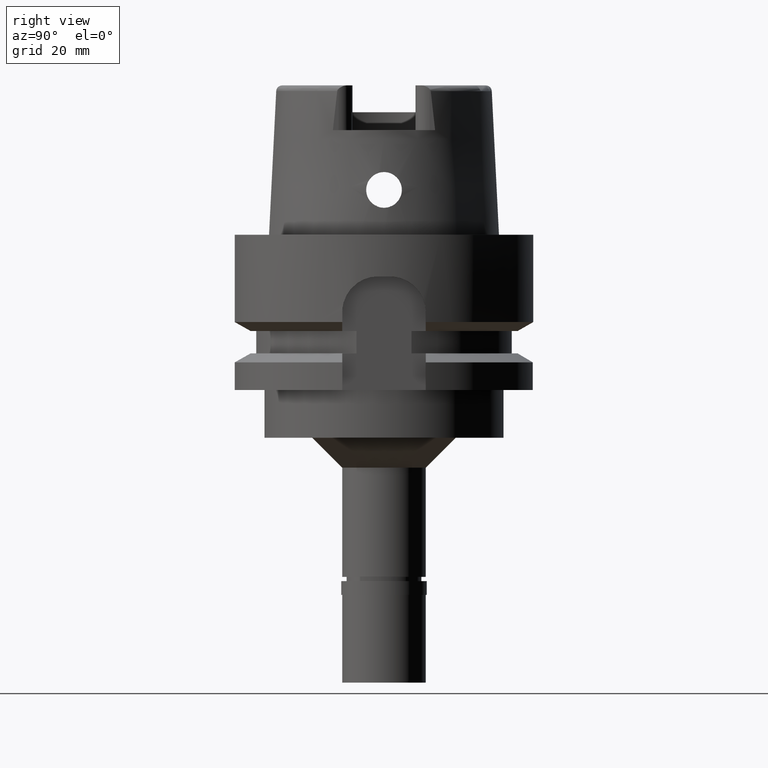
[diagram: clean part render]
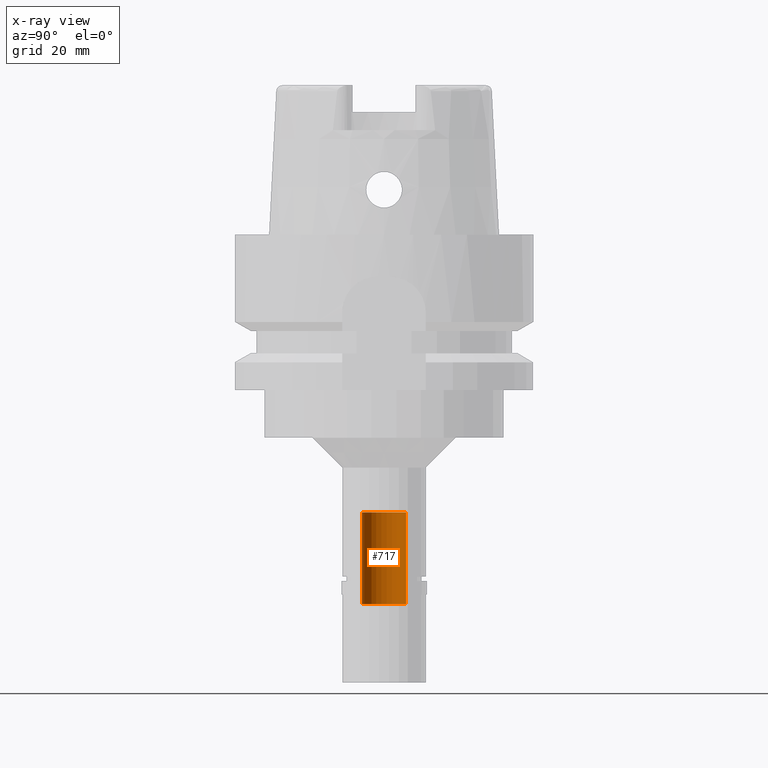
[diagram: x-ray — body ghosted, one internal face saturated and labeled with its STEP entity id]
A machine part, right view, then the same camera in x-ray: the body is ghosted and one INTERNAL B-rep face — a face not visible from any outside direction — is saturated and labeled: STEP entity #717.
In plain terms, the highlighted cylindrical surface (edge-blend (fillet) strip) has radius 3.7 mm, axis along (0, 0, 1).
Its self-contained STEP definition (entity closure, byte-faithful):
#171 = VERTEX_POINT ( 'NONE', #1955 ) ;
#299 = FACE_OUTER_BOUND ( 'NONE', #521, .T. ) ;
#521 = EDGE_LOOP ( 'NONE', ( #2609, #4174, #2618, #2857 ) ) ;
#717 = ADVANCED_FACE ( 'NONE', ( #299 ), #3285, .F. ) ;
#804 = DIRECTION ( 'NONE',  ( 0.0000000000000000000, 1.538526331033999949E-14, 1.000000000000000000 ) ) ;
#852 = LINE ( 'NONE', #2453, #1179 ) ;
#891 = DIRECTION ( 'NONE',  ( 0.0000000000000000000, 0.0000000000000000000, 1.000000000000000000 ) ) ;
#961 = VERTEX_POINT ( 'NONE', #3886 ) ;
#1026 = EDGE_CURVE ( 'NONE', #171, #1292, #4222, .T. ) ;
#1126 = CARTESIAN_POINT ( 'NONE',  ( 0.0000000000000000000, 3.700000000000000178, -46.50000000000000000 ) ) ;
#1130 = DIRECTION ( 'NONE',  ( 0.0000000000000000000, -1.538526331033999949E-14, 1.000000000000000000 ) ) ;
#1167 = CARTESIAN_POINT ( 'NONE',  ( 0.0000000000000000000, 3.700000000000000178, -61.85595815778999906 ) ) ;
#1179 = VECTOR ( 'NONE', #804, 1000.000000000000000 ) ;
#1253 = CARTESIAN_POINT ( 'NONE',  ( 0.0000000000000000000, 0.0000000000000000000, -61.85595815778999906 ) ) ;
#1292 = VERTEX_POINT ( 'NONE', #1167 ) ;
#1371 = DIRECTION ( 'NONE',  ( 0.0000000000000000000, 0.0000000000000000000, 1.000000000000000000 ) ) ;
#1418 = DIRECTION ( 'NONE',  ( 0.0000000000000000000, 1.000000000000000000, 0.0000000000000000000 ) ) ;
#1955 = CARTESIAN_POINT ( 'NONE',  ( 0.0000000000000000000, -3.700000000000000178, -61.85595815778999906 ) ) ;
#2161 = EDGE_CURVE ( 'NONE', #3090, #961, #3336, .T. ) ;
#2402 = DIRECTION ( 'NONE',  ( 0.0000000000000000000, 1.000000000000000000, 0.0000000000000000000 ) ) ;
#2453 = CARTESIAN_POINT ( 'NONE',  ( 0.0000000000000000000, 3.700000000000000178, -61.85595815778999906 ) ) ;
#2609 = ORIENTED_EDGE ( 'NONE', *, *, #2161, .T. ) ;
#2615 = EDGE_CURVE ( 'NONE', #171, #961, #3371, .T. ) ;
#2618 = ORIENTED_EDGE ( 'NONE', *, *, #1026, .T. ) ;
#2782 = CARTESIAN_POINT ( 'NONE',  ( 0.0000000000000000000, 0.0000000000000000000, -46.50000000000000000 ) ) ;
#2857 = ORIENTED_EDGE ( 'NONE', *, *, #3903, .T. ) ;
#2892 = CARTESIAN_POINT ( 'NONE',  ( 0.0000000000000000000, 0.0000000000000000000, -75.80000000000001137 ) ) ;
#3090 = VERTEX_POINT ( 'NONE', #1126 ) ;
#3165 = DIRECTION ( 'NONE',  ( 0.0000000000000000000, 0.0000000000000000000, -1.000000000000000000 ) ) ;
#3285 = CYLINDRICAL_SURFACE ( 'NONE', #3326, 3.700000000000000178 ) ;
#3326 = AXIS2_PLACEMENT_3D ( 'NONE', #2892, #1371, #1418 ) ;
#3336 = CIRCLE ( 'NONE', #3431, 3.700000000000000178 ) ;
#3371 = LINE ( 'NONE', #4149, #4706 ) ;
#3431 = AXIS2_PLACEMENT_3D ( 'NONE', #2782, #891, #2402 ) ;
#3538 = DIRECTION ( 'NONE',  ( 0.0000000000000000000, -1.000000000000000000, 0.0000000000000000000 ) ) ;
#3734 = AXIS2_PLACEMENT_3D ( 'NONE', #1253, #3165, #3538 ) ;
#3886 = CARTESIAN_POINT ( 'NONE',  ( 0.0000000000000000000, -3.700000000000000178, -46.50000000000000000 ) ) ;
#3903 = EDGE_CURVE ( 'NONE', #1292, #3090, #852, .T. ) ;
#4149 = CARTESIAN_POINT ( 'NONE',  ( 0.0000000000000000000, -3.700000000000000178, -61.85595815778999906 ) ) ;
#4174 = ORIENTED_EDGE ( 'NONE', *, *, #2615, .F. ) ;
#4222 = CIRCLE ( 'NONE', #3734, 3.700000000000000178 ) ;
#4706 = VECTOR ( 'NONE', #1130, 1000.000000000000000 ) ;